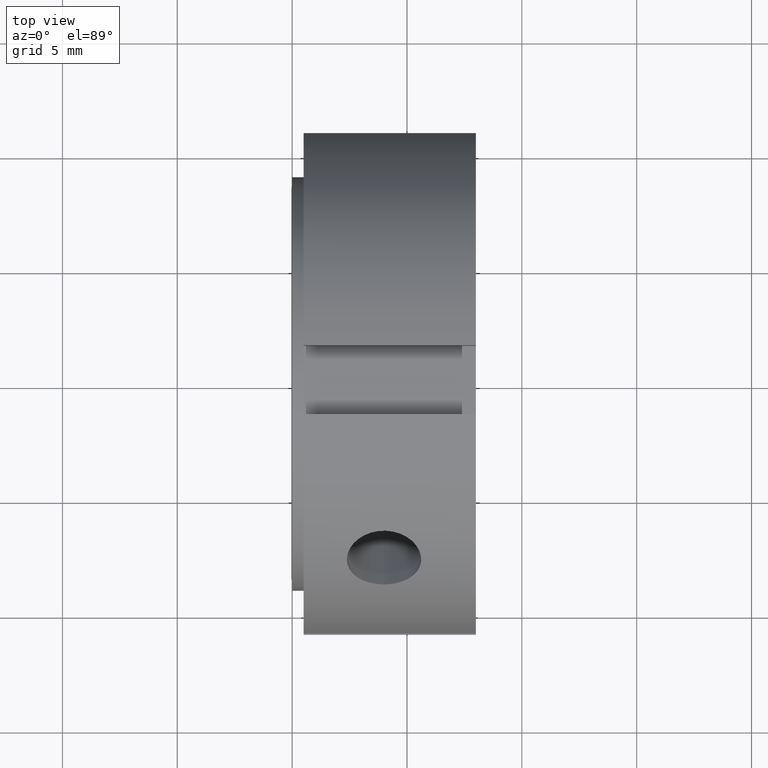
[diagram: clean part render]
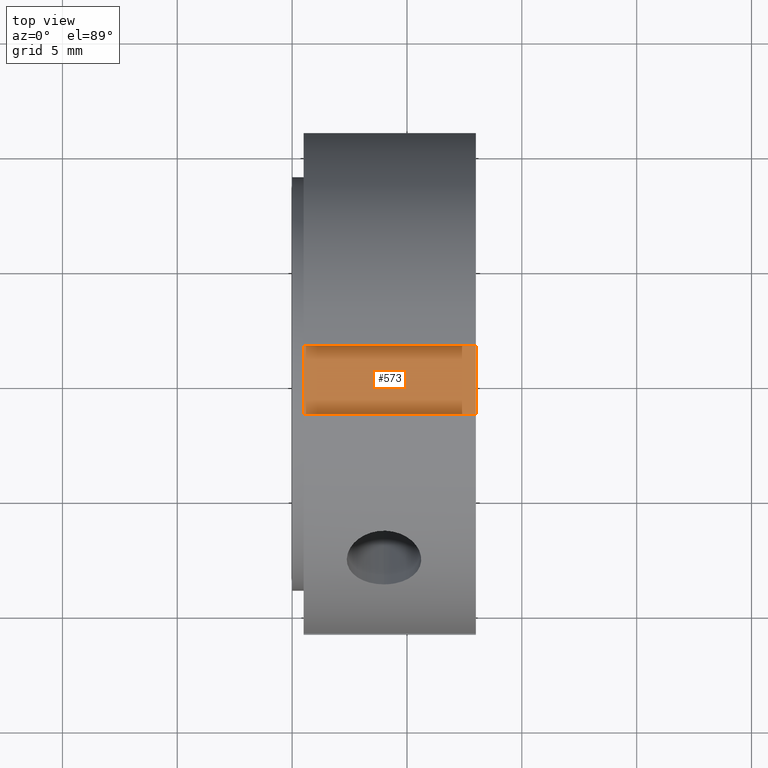
[diagram: same view with one face highlighted and labeled with its STEP entity id]
A machine part, top view. The second image highlights one B-rep face of the part: STEP entity #573.
In plain terms, the highlighted planar face has unit normal (0, 0, -1).
Its self-contained STEP definition (entity closure, byte-faithful):
#469=CARTESIAN_POINT('',(0.499999999999998,1.500000000000001,8.999999999999996));
#470=VERTEX_POINT('',#469);
#479=CARTESIAN_POINT('',(7.999999999999998,1.500000000000001,8.999999999999996));
#480=VERTEX_POINT('',#479);
#481=CARTESIAN_POINT('',(7.999999999999998,1.500000000000001,8.999999999999996));
#482=DIRECTION('',(-1.0,0.0,0.0));
#483=VECTOR('',#482,7.500000000000000);
#484=LINE('',#481,#483);
#485=EDGE_CURVE('',#480,#470,#484,.T.);
#511=CARTESIAN_POINT('',(0.499999999999998,-1.500000000000000,8.999999999999996));
#512=VERTEX_POINT('',#511);
#527=CARTESIAN_POINT('',(7.999999999999998,-1.500000000000000,8.999999999999996));
#528=VERTEX_POINT('',#527);
#535=CARTESIAN_POINT('',(7.999999999999998,-1.500000000000000,8.999999999999996));
#536=DIRECTION('',(-1.0,0.0,0.0));
#537=VECTOR('',#536,7.500000000000000);
#538=LINE('',#535,#537);
#539=EDGE_CURVE('',#528,#512,#538,.T.);
#544=CARTESIAN_POINT('',(7.999999999999998,-1.500000000000000,8.999999999999996));
#545=DIRECTION('',(0.0,0.0,-1.0));
#546=DIRECTION('',(0.0,1.0,0.0));
#547=AXIS2_PLACEMENT_3D('',#544,#545,#546);
#548=PLANE('',#547);
#549=CARTESIAN_POINT('',(0.499999999999998,5.551115E-016,8.999999999999996));
#550=VERTEX_POINT('',#549);
#551=CARTESIAN_POINT('',(0.499999999999998,-1.499999999999999,8.999999999999996));
#552=DIRECTION('',(0.0,1.0,0.0));
#553=VECTOR('',#552,1.500000000000000);
#554=LINE('',#551,#553);
#555=EDGE_CURVE('',#512,#550,#554,.T.);
#556=ORIENTED_EDGE('',*,*,#555,.F.);
#557=ORIENTED_EDGE('',*,*,#539,.F.);
#558=CARTESIAN_POINT('',(7.999999999999998,1.500000000000001,8.999999999999996));
#559=DIRECTION('',(0.0,-1.0,0.0));
#560=VECTOR('',#559,3.0);
#561=LINE('',#558,#560);
#562=EDGE_CURVE('',#480,#528,#561,.T.);
#563=ORIENTED_EDGE('',*,*,#562,.F.);
#564=ORIENTED_EDGE('',*,*,#485,.T.);
#565=CARTESIAN_POINT('',(0.499999999999998,8.881784E-016,8.999999999999996));
#566=DIRECTION('',(0.0,1.0,0.0));
#567=VECTOR('',#566,1.500000000000000);
#568=LINE('',#565,#567);
#569=EDGE_CURVE('',#550,#470,#568,.T.);
#570=ORIENTED_EDGE('',*,*,#569,.F.);
#571=EDGE_LOOP('',(#556,#557,#563,#564,#570));
#572=FACE_OUTER_BOUND('',#571,.T.);
#573=ADVANCED_FACE('',(#572),#548,.F.);